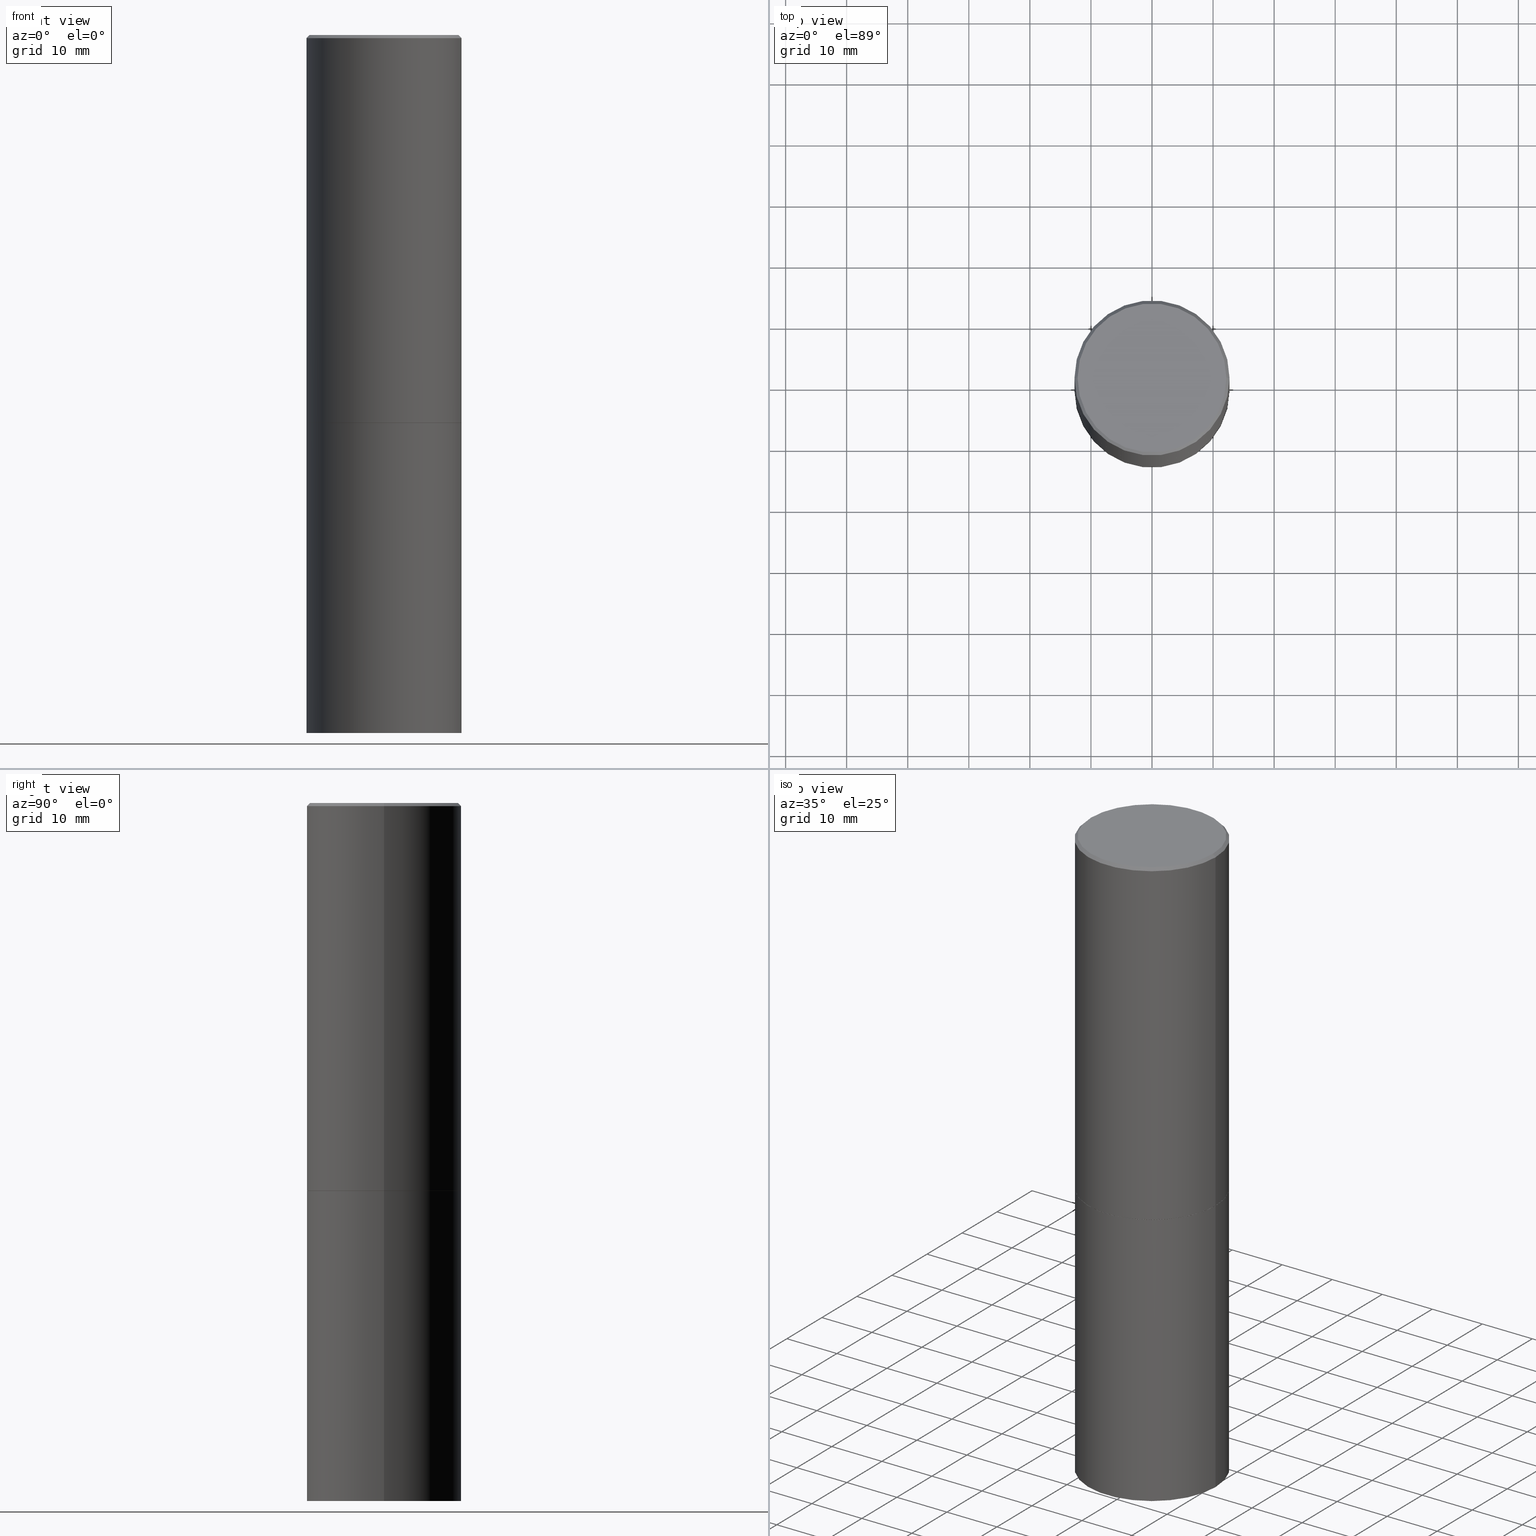
[diagram: canonical four-view strip — front | top / right | iso, engineering-drawing reading convention]
A machine part, canonical four-view strip (front | top / right | iso — engineering-drawing reading convention). The complete STEP part file that produces these views, byte-faithful:
ISO-10303-21;
HEADER;
FILE_DESCRIPTION (( 'STEP AP203' ),
    '1' );
FILE_NAME ('38511.STEP',
    '2024-02-27T23:08:18',
    ( '' ),
    ( '' ),
    'SwSTEP 2.0',
    'SolidWorks 2023',
    '' );
FILE_SCHEMA (( 'CONFIG_CONTROL_DESIGN' ));
ENDSEC;

DATA;
#1 = CONICAL_SURFACE ( 'NONE', #325, 0.4999999999999997224, 0.7853981633974463916 ) ;
#2 = ORIENTED_EDGE ( 'NONE', *, *, #152, .F. ) ;
#3 = DIRECTION ( 'NONE',  ( -0.7071067811865461294, 2.468850131082242072E-15, -0.7071067811865489050 ) ) ;
#4 = DIRECTION ( 'NONE',  ( 2.445468806185136597E-29, -3.491481338843145583E-15, -1.000000000000000000 ) ) ;
#5 = CARTESIAN_POINT ( 'NONE',  ( -0.4989999999999999991, -5.177796641316744197E-15, -2.500000000000000444 ) ) ;
#6 = CLOSED_SHELL ( 'NONE', ( #10, #171, #332, #314 ) ) ;
#7 = UNCERTAINTY_MEASURE_WITH_UNIT (LENGTH_MEASURE( 1.000000000000000082E-05 ), #78, 'distance_accuracy_value', 'NONE');
#8 = CARTESIAN_POINT ( 'NONE',  ( 0.5000000000000000000, -1.920314736363729025E-14, -4.500000000000000000 ) ) ;
#9 = PERSON_AND_ORGANIZATION_ROLE ( 'creator' ) ;
#10 = ADVANCED_FACE ( 'NONE', ( #227 ), #66, .T. ) ;
#11 = ORIENTED_EDGE ( 'NONE', *, *, #362, .T. ) ;
#12 = APPROVAL_DATE_TIME ( #176, #122 ) ;
#13 = CARTESIAN_POINT ( 'NONE',  ( 0.000000000000000000, 0.000000000000000000, 0.000000000000000000 ) ) ;
#14 = CARTESIAN_POINT ( 'NONE',  ( 6.113672015462842613E-29, -8.728703347107864943E-15, -2.500000000000000000 ) ) ;
#15 = FACE_OUTER_BOUND ( 'NONE', #244, .T. ) ;
#16 = PERSON_AND_ORGANIZATION ( #212, #252 ) ;
#17 = ADVANCED_FACE ( 'NONE', ( #263 ), #293, .T. ) ;
#18 = CARTESIAN_POINT ( 'NONE',  ( 3.491481338843243007E-15, 0.4999999999999842903, -4.500000000000001776 ) ) ;
#19 = CARTESIAN_POINT ( 'NONE',  ( 3.491481338843194098E-15, 0.4999999999999912292, -2.500000000000001776 ) ) ;
#20 = VECTOR ( 'NONE', #303, 39.37007874015748143 ) ;
#21 = AXIS2_PLACEMENT_3D ( 'NONE', #170, #4, #97 ) ;
#22 = ORIENTED_EDGE ( 'NONE', *, *, #108, .F. ) ;
#23 = CALENDAR_DATE ( 2024, 27, 2 ) ;
#24 = ORIENTED_EDGE ( 'NONE', *, *, #229, .T. ) ;
#25 = DIRECTION ( 'NONE',  ( -2.445468806185136597E-29, 3.491481338843145583E-15, 1.000000000000000000 ) ) ;
#26 = ADVANCED_FACE ( 'NONE', ( #345 ), #1, .T. ) ;
#27 = AXIS2_PLACEMENT_3D ( 'NONE', #351, #180, #296 ) ;
#28 = DIRECTION ( 'NONE',  ( -2.445468806185136597E-29, 3.491481338843145583E-15, 1.000000000000000000 ) ) ;
#29 = DATE_AND_TIME ( #197, #33 ) ;
#30 = EDGE_CURVE ( 'NONE', #282, #246, #225, .T. ) ;
#31 = DIRECTION ( 'NONE',  ( -2.445468806185136597E-29, 3.491481338843145583E-15, 1.000000000000000000 ) ) ;
#32 = ORIENTED_EDGE ( 'NONE', *, *, #213, .F. ) ;
#33 = LOCAL_TIME ( 18, 8, 18.00000000000000000, #315 ) ;
#34 = ORIENTED_EDGE ( 'NONE', *, *, #59, .F. ) ;
#35 = COORDINATED_UNIVERSAL_TIME_OFFSET ( 5, 0, .BEHIND. ) ;
#36 = DIRECTION ( 'NONE',  ( 1.000000000000000000, -6.982962677686267499E-15, 4.876431871984417079E-29 ) ) ;
#37 = CARTESIAN_POINT ( 'NONE',  ( 0.5000000000000000000, -1.221669320461215371E-14, -2.499000000000000110 ) ) ;
#38 = VECTOR ( 'NONE', #76, 39.37007874015748143 ) ;
#39 = DIRECTION ( 'NONE',  ( -2.445468806185136597E-29, 3.491481338843145583E-15, 1.000000000000000000 ) ) ;
#40 = APPROVAL_DATE_TIME ( #320, #121 ) ;
#41 = DATE_AND_TIME ( #67, #116 ) ;
#42 = CARTESIAN_POINT ( 'NONE',  ( 4.890937612370302936E-31, -6.982962677686332285E-17, -0.02000000000000011838 ) ) ;
#43 = CARTESIAN_POINT ( 'NONE',  ( -0.5000000000000000000, -8.448070674724411945E-16, -2.499000000000000110 ) ) ;
#44 = DIRECTION ( 'NONE',  ( -2.445468806185136597E-29, 3.491481338843145583E-15, 1.000000000000000000 ) ) ;
#45 = AXIS2_PLACEMENT_3D ( 'NONE', #94, #25, #224 ) ;
#46 = ORIENTED_EDGE ( 'NONE', *, *, #256, .F. ) ;
#47 = CIRCLE ( 'NONE', #243, 0.5000000000000000000 ) ;
#48 = APPROVAL ( #60, 'UNSPECIFIED' ) ;
#49 = PERSON_AND_ORGANIZATION ( #212, #252 ) ;
#50 = PERSON_AND_ORGANIZATION_ROLE ( 'design_owner' ) ;
#51 =( NAMED_UNIT ( * ) SI_UNIT ( $, .STERADIAN. ) SOLID_ANGLE_UNIT ( ) );
#52 = CARTESIAN_POINT ( 'NONE',  ( 6.113672015462842613E-29, -8.728703347107864943E-15, -2.500000000000000000 ) ) ;
#53 = CARTESIAN_POINT ( 'NONE',  ( 0.4989999999999999991, -1.221320172327331386E-14, -2.500000000000000444 ) ) ;
#54 = EDGE_LOOP ( 'NONE', ( #22, #89 ) ) ;
#55 = CARTESIAN_POINT ( 'NONE',  ( -0.4799999999999996492, 3.386736898677836830E-15, 1.707404996037808406E-17 ) ) ;
#56 = DIRECTION ( 'NONE',  ( -2.445468806185136597E-29, 3.491481338843145583E-15, 1.000000000000000000 ) ) ;
#57 = DIRECTION ( 'NONE',  ( 1.000000000000000000, -6.982962677686266711E-15, 0.000000000000000000 ) ) ;
#58 = CARTESIAN_POINT ( 'NONE',  ( 4.890937612370302936E-31, -6.982962677686332285E-17, -0.02000000000000011838 ) ) ;
#59 = EDGE_CURVE ( 'NONE', #215, #318, #47, .T. ) ;
#60 = APPROVAL_STATUS ( 'not_yet_approved' ) ;
#61 = DIRECTION ( 'NONE',  ( 1.000000000000000000, -6.982962677686266711E-15, 0.000000000000000000 ) ) ;
#62 = MANIFOLD_SOLID_BREP ( 'Body-Move/Copy2[1]', #6 ) ;
#63 = EDGE_LOOP ( 'NONE', ( #356, #77, #34, #333 ) ) ;
#64 = MANIFOLD_SOLID_BREP ( 'Body-Move/Copy2[2]', #214 ) ;
#65 = CIRCLE ( 'NONE', #310, 0.4799999999999996492 ) ;
#66 = CYLINDRICAL_SURFACE ( 'NONE', #203, 0.5000000000000000000 ) ;
#67 = CALENDAR_DATE ( 2024, 27, 2 ) ;
#68 = LINE ( 'NONE', #91, #172 ) ;
#69 = LENGTH_MEASURE_WITH_UNIT ( LENGTH_MEASURE( 0.02539999999999999897 ), #127 );
#70 = DIRECTION ( 'NONE',  ( 1.000000000000000000, -6.982962677686266711E-15, 0.000000000000000000 ) ) ;
#71 = CC_DESIGN_DATE_AND_TIME_ASSIGNMENT ( #29, #294, ( #259 ) ) ;
#72 = VECTOR ( 'NONE', #238, 39.37007874015748143 ) ;
#73 = PERSON_AND_ORGANIZATION ( #212, #252 ) ;
#74 = ORIENTED_EDGE ( 'NONE', *, *, #162, .T. ) ;
#75 = AXIS2_PLACEMENT_3D ( 'NONE', #211, #149, #36 ) ;
#76 = DIRECTION ( 'NONE',  ( 0.7071067811865461294, -7.319954787623251312E-15, -0.7071067811865489050 ) ) ;
#77 = ORIENTED_EDGE ( 'NONE', *, *, #240, .T. ) ;
#78 =( CONVERSION_BASED_UNIT ( 'INCH', #69 ) LENGTH_UNIT ( ) NAMED_UNIT ( #131 ) );
#79 = DIRECTION ( 'NONE',  ( -1.000000000000000000, 6.982962677686265922E-15, -4.876176775795935793E-29 ) ) ;
#80 = CARTESIAN_POINT ( 'NONE',  ( 4.890937612370302936E-31, -6.982962677686332285E-17, -0.02000000000000011838 ) ) ;
#81 = CONICAL_SURFACE ( 'NONE', #235, 0.4989999999999999991, 0.7853981633972775267 ) ;
#82 = CYLINDRICAL_SURFACE ( 'NONE', #335, 0.5000000000000000000 ) ;
#83 = AXIS2_PLACEMENT_3D ( 'NONE', #111, #183, #105 ) ;
#84 = DIRECTION ( 'NONE',  ( 1.000000000000000000, -6.982962677686266711E-15, 0.000000000000000000 ) ) ;
#85 = ORIENTED_EDGE ( 'NONE', *, *, #292, .F. ) ;
#86 = CARTESIAN_POINT ( 'NONE',  ( 1.100460962783311469E-28, -1.571166602479415690E-14, -4.500000000000000000 ) ) ;
#87 = CARTESIAN_POINT ( 'NONE',  ( 0.5000000000000000000, -3.491481338843133355E-15, 2.438088387897967896E-29 ) ) ;
#88 = AXIS2_PLACEMENT_3D ( 'NONE', #222, #334, #270 ) ;
#89 = ORIENTED_EDGE ( 'NONE', *, *, #118, .F. ) ;
#90 = COORDINATED_UNIVERSAL_TIME_OFFSET ( 5, 0, .BEHIND. ) ;
#91 = CARTESIAN_POINT ( 'NONE',  ( 0.4989999999999999991, -1.221320172327331386E-14, -2.500000000000000444 ) ) ;
#92 = EDGE_CURVE ( 'NONE', #318, #198, #142, .T. ) ;
#93 = FACE_OUTER_BOUND ( 'NONE', #63, .T. ) ;
#94 = CARTESIAN_POINT ( 'NONE',  ( 0.000000000000000000, 0.000000000000000000, 0.000000000000000000 ) ) ;
#95 = EDGE_LOOP ( 'NONE', ( #328, #178, #226, #2 ) ) ;
#96 = DIRECTION ( 'NONE',  ( -1.000000000000000000, 6.982962677686265922E-15, -4.876176775795935793E-29 ) ) ;
#97 = DIRECTION ( 'NONE',  ( -1.000000000000000000, 6.982962677686266711E-15, 0.000000000000000000 ) ) ;
#98 = FACE_OUTER_BOUND ( 'NONE', #145, .T. ) ;
#99 = EDGE_CURVE ( 'NONE', #232, #255, #165, .T. ) ;
#100 = ORIENTED_EDGE ( 'NONE', *, *, #162, .F. ) ;
#101 = APPROVAL_ROLE ( '' ) ;
#102 = PERSON_AND_ORGANIZATION ( #212, #252 ) ;
#103 = EDGE_CURVE ( 'NONE', #301, #255, #200, .T. ) ;
#104 = CC_DESIGN_APPROVAL ( #122, ( #259 ) ) ;
#105 = DIRECTION ( 'NONE',  ( -1.000000000000000000, 6.982962677686265922E-15, -4.876176775795935793E-29 ) ) ;
#106 = AXIS2_PLACEMENT_3D ( 'NONE', #52, #231, #265 ) ;
#107 = APPROVAL_STATUS ( 'not_yet_approved' ) ;
#108 = EDGE_CURVE ( 'NONE', #267, #230, #290, .T. ) ;
#109 = FACE_OUTER_BOUND ( 'NONE', #220, .T. ) ;
#110 = CC_DESIGN_APPROVAL ( #48, ( #153 ) ) ;
#111 = CARTESIAN_POINT ( 'NONE',  ( 3.351822085289405181E-15, 0.4799999999999996492, -1.667374017664507851E-15 ) ) ;
#112 = ORIENTED_EDGE ( 'NONE', *, *, #350, .T. ) ;
#113 = ADVANCED_FACE ( 'NONE', ( #93 ), #133, .T. ) ;
#114 = DIRECTION ( 'NONE',  ( 1.000000000000000000, -6.982962677686267499E-15, 4.876431871984417079E-29 ) ) ;
#115 = ORIENTED_EDGE ( 'NONE', *, *, #99, .T. ) ;
#116 = LOCAL_TIME ( 18, 8, 18.00000000000000000, #129 ) ;
#117 = ORIENTED_EDGE ( 'NONE', *, *, #99, .F. ) ;
#118 = EDGE_CURVE ( 'NONE', #230, #267, #148, .T. ) ;
#119 = CARTESIAN_POINT ( 'NONE',  ( 6.113672015462842613E-29, -8.728703347107866520E-15, -2.500000000000000444 ) ) ;
#120 = LOCAL_TIME ( 18, 8, 18.00000000000000000, #349 ) ;
#121 = APPROVAL ( #107, 'UNSPECIFIED' ) ;
#122 = APPROVAL ( #191, 'UNSPECIFIED' ) ;
#123 = CALENDAR_DATE ( 2024, 27, 2 ) ;
#124 = EDGE_LOOP ( 'NONE', ( #278, #253, #117, #130 ) ) ;
#125 = DIRECTION ( 'NONE',  ( -2.445468806185136877E-29, 3.491481338843145188E-15, 1.000000000000000000 ) ) ;
#126 = EDGE_CURVE ( 'NONE', #246, #282, #65, .T. ) ;
#127 =( LENGTH_UNIT ( ) NAMED_UNIT ( * ) SI_UNIT ( $, .METRE. ) );
#128 = LINE ( 'NONE', #326, #272 ) ;
#129 = COORDINATED_UNIVERSAL_TIME_OFFSET ( 5, 0, .BEHIND. ) ;
#130 = ORIENTED_EDGE ( 'NONE', *, *, #291, .F. ) ;
#131 = DIMENSIONAL_EXPONENTS ( 1.000000000000000000, 0.000000000000000000, 0.000000000000000000, 0.000000000000000000, 0.000000000000000000, 0.000000000000000000, 0.000000000000000000 ) ;
#132 = AXIS2_PLACEMENT_3D ( 'NONE', #80, #56, #70 ) ;
#133 = CONICAL_SURFACE ( 'NONE', #329, 0.4989999999999999991, 0.7853981633972775267 ) ;
#134 = FACE_OUTER_BOUND ( 'NONE', #54, .T. ) ;
#135 = EDGE_LOOP ( 'NONE', ( #188, #250, #24, #46 ) ) ;
#136 = DIRECTION ( 'NONE',  ( -2.445468806185136597E-29, 3.491481338843145583E-15, 1.000000000000000000 ) ) ;
#137 = FACE_OUTER_BOUND ( 'NONE', #344, .T. ) ;
#138 = CARTESIAN_POINT ( 'NONE',  ( 6.111226546656657010E-29, -8.725211865769021935E-15, -2.499000000000000110 ) ) ;
#139 = CARTESIAN_POINT ( 'NONE',  ( -4.175405657340879278E-46, 5.961372681521788801E-32, 1.707404996040164512E-17 ) ) ;
#140 = ORIENTED_EDGE ( 'NONE', *, *, #126, .F. ) ;
#141 = ORIENTED_EDGE ( 'NONE', *, *, #362, .F. ) ;
#142 = LINE ( 'NONE', #365, #261 ) ;
#143 =( NAMED_UNIT ( * ) PLANE_ANGLE_UNIT ( ) SI_UNIT ( $, .RADIAN. ) );
#144 = APPLICATION_CONTEXT ( 'configuration controlled 3d designs of mechanical parts and assemblies' ) ;
#145 = EDGE_LOOP ( 'NONE', ( #186, #217, #112, #286 ) ) ;
#146 = AXIS2_PLACEMENT_3D ( 'NONE', #14, #321, #237 ) ;
#147 = VERTEX_POINT ( 'NONE', #221 ) ;
#148 = CIRCLE ( 'NONE', #219, 0.4989999999999999991 ) ;
#149 = DIRECTION ( 'NONE',  ( -2.445468806185136597E-29, 3.491481338843145583E-15, 1.000000000000000000 ) ) ;
#150 = CIRCLE ( 'NONE', #88, 0.5000000000000000000 ) ;
#151 = ADVANCED_FACE ( 'NONE', ( #241 ), #298, .F. ) ;
#152 = EDGE_CURVE ( 'NONE', #215, #147, #128, .T. ) ;
#153 = PRODUCT_DEFINITION_FORMATION_WITH_SPECIFIED_SOURCE ( 'ANY', '', #358, .NOT_KNOWN. ) ;
#154 = CARTESIAN_POINT ( 'NONE',  ( -0.4999999999999997224, 3.421651712066268085E-15, -0.02000000000000011838 ) ) ;
#155 = APPROVAL_ROLE ( '' ) ;
#156 = FACE_OUTER_BOUND ( 'NONE', #95, .T. ) ;
#157 = DIRECTION ( 'NONE',  ( -2.445468806185136597E-29, 3.491481338843145583E-15, 1.000000000000000000 ) ) ;
#158 = APPROVAL_ROLE ( '' ) ;
#159 = LINE ( 'NONE', #346, #38 ) ;
#160 = CIRCLE ( 'NONE', #195, 0.4999999999999997224 ) ;
#161 = FACE_OUTER_BOUND ( 'NONE', #174, .T. ) ;
#162 = EDGE_CURVE ( 'NONE', #301, #363, #269, .T. ) ;
#163 = ORIENTED_EDGE ( 'NONE', *, *, #126, .T. ) ;
#164 = CIRCLE ( 'NONE', #132, 0.4999999999999997224 ) ;
#165 = CIRCLE ( 'NONE', #106, 0.5000000000000000000 ) ;
#166 = PRODUCT_RELATED_PRODUCT_CATEGORY ( 'detail', '', ( #358 ) ) ;
#167 = EDGE_CURVE ( 'NONE', #282, #147, #159, .T. ) ;
#168 = DIRECTION ( 'NONE',  ( 1.000000000000000000, -6.982962677686266711E-15, 4.876176775795935793E-29 ) ) ;
#169 = LOCAL_TIME ( 18, 8, 18.00000000000000000, #90 ) ;
#170 = CARTESIAN_POINT ( 'NONE',  ( 4.890937612370302936E-31, -6.982962677686332285E-17, -0.02000000000000011838 ) ) ;
#171 = ADVANCED_FACE ( 'NONE', ( #15 ), #276, .T. ) ;
#172 = VECTOR ( 'NONE', #266, 39.37007874015748143 ) ;
#173 = DIRECTION ( 'NONE',  ( -1.000000000000000000, 6.982962677686266711E-15, 0.000000000000000000 ) ) ;
#174 = EDGE_LOOP ( 'NONE', ( #192, #360, #341, #85 ) ) ;
#175 = DIRECTION ( 'NONE',  ( 2.445468806185136597E-29, -3.491481338843145583E-15, -1.000000000000000000 ) ) ;
#176 = DATE_AND_TIME ( #123, #169 ) ;
#177 = DIRECTION ( 'NONE',  ( 2.438088387897960049E-29, -3.491481338843145188E-15, -1.000000000000000000 ) ) ;
#178 = ORIENTED_EDGE ( 'NONE', *, *, #92, .T. ) ;
#179 = CARTESIAN_POINT ( 'NONE',  ( -0.4989999999999999991, -5.183095095664967388E-15, -2.500000000000000444 ) ) ;
#180 = DIRECTION ( 'NONE',  ( -2.445468806185136597E-29, 3.491481338843145583E-15, 1.000000000000000000 ) ) ;
#181 = CIRCLE ( 'NONE', #27, 0.5000000000000000000 ) ;
#182 = AXIS2_PLACEMENT_3D ( 'NONE', #257, #199, #61 ) ;
#183 = DIRECTION ( 'NONE',  ( 2.438088387897960049E-29, -3.491481338843145188E-15, -1.000000000000000000 ) ) ;
#184 = CARTESIAN_POINT ( 'NONE',  ( 0.000000000000000000, 0.000000000000000000, 0.000000000000000000 ) ) ;
#185 = DIRECTION ( 'NONE',  ( 1.000000000000000000, -6.982962677686266711E-15, 4.876176775795935793E-29 ) ) ;
#186 = ORIENTED_EDGE ( 'NONE', *, *, #240, .F. ) ;
#187 = CARTESIAN_POINT ( 'NONE',  ( 6.113672015462842613E-29, -8.728703347107866520E-15, -2.500000000000000444 ) ) ;
#188 = ORIENTED_EDGE ( 'NONE', *, *, #30, .F. ) ;
#189 = LOCAL_TIME ( 18, 8, 18.00000000000000000, #35 ) ;
#190 = CARTESIAN_POINT ( 'NONE',  ( -0.5000000000000000000, -8.667471007150509990E-15, -2.500000000000000000 ) ) ;
#191 = APPROVAL_STATUS ( 'not_yet_approved' ) ;
#192 = ORIENTED_EDGE ( 'NONE', *, *, #92, .F. ) ;
#193 = ORIENTED_EDGE ( 'NONE', *, *, #292, .T. ) ;
#194 = CARTESIAN_POINT ( 'NONE',  ( 6.111226546656657010E-29, -8.725211865769021935E-15, -2.499000000000000110 ) ) ;
#195 = AXIS2_PLACEMENT_3D ( 'NONE', #42, #39, #84 ) ;
#196 = ORIENTED_EDGE ( 'NONE', *, *, #291, .T. ) ;
#197 = CALENDAR_DATE ( 2024, 27, 2 ) ;
#198 = VERTEX_POINT ( 'NONE', #154 ) ;
#199 = DIRECTION ( 'NONE',  ( -2.445468806185136597E-29, 3.491481338843145583E-15, 1.000000000000000000 ) ) ;
#200 = LINE ( 'NONE', #338, #307 ) ;
#201 = DIRECTION ( 'NONE',  ( -2.445468806185136597E-29, 3.491481338843145583E-15, 1.000000000000000000 ) ) ;
#202 = VECTOR ( 'NONE', #3, 39.37007874015748143 ) ;
#203 = AXIS2_PLACEMENT_3D ( 'NONE', #364, #312, #168 ) ;
#204 = APPLICATION_PROTOCOL_DEFINITION ( 'international standard', 'config_control_design', 1994, #284 ) ;
#205 = CC_DESIGN_DATE_AND_TIME_ASSIGNMENT ( #41, #275, ( #336 ) ) ;
#206 = AXIS2_PLACEMENT_3D ( 'NONE', #13, #136, #239 ) ;
#207 = AXIS2_PLACEMENT_3D ( 'NONE', #184, #300, #254 ) ;
#208 = EDGE_CURVE ( 'NONE', #318, #215, #287, .T. ) ;
#209 = PERSON_AND_ORGANIZATION ( #212, #252 ) ;
#210 = CALENDAR_DATE ( 2024, 27, 2 ) ;
#211 = CARTESIAN_POINT ( 'NONE',  ( -4.175405657340879278E-46, 5.961372681521788801E-32, 1.707404996040164512E-17 ) ) ;
#212 = PERSON ( 'UNSPECIFIED', 'UNSPECIFIED', 'UNSPECIFIED', ('UNSPECIFIED'), ('UNSPECIFIED'), ('UNSPECIFIED') ) ;
#213 = EDGE_CURVE ( 'NONE', #363, #301, #181, .T. ) ;
#214 = CLOSED_SHELL ( 'NONE', ( #113, #223, #26, #17, #249, #355, #295, #151 ) ) ;
#215 = VERTEX_POINT ( 'NONE', #37 ) ;
#216 = APPLICATION_PROTOCOL_DEFINITION ( 'international standard', 'config_control_design', 1994, #144 ) ;
#217 = ORIENTED_EDGE ( 'NONE', *, *, #118, .T. ) ;
#218 = AXIS2_PLACEMENT_3D ( 'NONE', #19, #339, #96 ) ;
#219 = AXIS2_PLACEMENT_3D ( 'NONE', #187, #283, #285 ) ;
#220 = EDGE_LOOP ( 'NONE', ( #340, #74, #196, #141 ) ) ;
#221 = CARTESIAN_POINT ( 'NONE',  ( 0.4999999999999997224, -3.500078625662627502E-15, -0.02000000000000011838 ) ) ;
#222 = CARTESIAN_POINT ( 'NONE',  ( 6.113672015462842613E-29, -8.728703347107864943E-15, -2.500000000000000000 ) ) ;
#223 = ADVANCED_FACE ( 'NONE', ( #156 ), #273, .T. ) ;
#224 = DIRECTION ( 'NONE',  ( 1.000000000000000000, -6.982962677686267499E-15, 4.876176775795936353E-29 ) ) ;
#225 = CIRCLE ( 'NONE', #75, 0.4799999999999996492 ) ;
#226 = ORIENTED_EDGE ( 'NONE', *, *, #229, .F. ) ;
#227 = FACE_OUTER_BOUND ( 'NONE', #124, .T. ) ;
#228 = DIRECTION ( 'NONE',  ( 1.000000000000000000, -6.982962677686266711E-15, 0.000000000000000000 ) ) ;
#229 = EDGE_CURVE ( 'NONE', #147, #198, #164, .T. ) ;
#230 = VERTEX_POINT ( 'NONE', #5 ) ;
#231 = DIRECTION ( 'NONE',  ( -2.445468806185136597E-29, 3.491481338843145583E-15, 1.000000000000000000 ) ) ;
#232 = VERTEX_POINT ( 'NONE', #279 ) ;
#233 = SHAPE_DEFINITION_REPRESENTATION ( #247, #313 ) ;
#234 = CC_DESIGN_PERSON_AND_ORGANIZATION_ASSIGNMENT ( #49, #322, ( #259 ) ) ;
#235 = AXIS2_PLACEMENT_3D ( 'NONE', #119, #201, #57 ) ;
#236 = PERSON_AND_ORGANIZATION_ROLE ( 'creator' ) ;
#237 = DIRECTION ( 'NONE',  ( 1.000000000000000000, -6.982962677686265922E-15, 4.876176775795935793E-29 ) ) ;
#238 = DIRECTION ( 'NONE',  ( -0.7071067811864267805, 7.493145998869918709E-15, 0.7071067811866682540 ) ) ;
#239 = DIRECTION ( 'NONE',  ( 1.000000000000000000, -6.982962677686267499E-15, 4.876176775795936353E-29 ) ) ;
#240 = EDGE_CURVE ( 'NONE', #230, #318, #305, .T. ) ;
#241 = FACE_OUTER_BOUND ( 'NONE', #331, .T. ) ;
#242 = PLANE ( 'NONE',  #146 ) ;
#243 = AXIS2_PLACEMENT_3D ( 'NONE', #194, #31, #324 ) ;
#244 = EDGE_LOOP ( 'NONE', ( #32, #100 ) ) ;
#245 = PERSON_AND_ORGANIZATION_ROLE ( 'design_supplier' ) ;
#246 = VERTEX_POINT ( 'NONE', #55 ) ;
#247 = PRODUCT_DEFINITION_SHAPE ( 'NONE', 'NONE',  #336 ) ;
#248 = DATE_AND_TIME ( #23, #189 ) ;
#249 = ADVANCED_FACE ( 'NONE', ( #161 ), #258, .T. ) ;
#250 = ORIENTED_EDGE ( 'NONE', *, *, #167, .T. ) ;
#251 = MECHANICAL_CONTEXT ( 'NONE', #144, 'mechanical' ) ;
#252 = ORGANIZATION ( 'UNSPECIFIED', 'UNSPECIFIED', '' ) ;
#253 = ORIENTED_EDGE ( 'NONE', *, *, #103, .T. ) ;
#254 = DIRECTION ( 'NONE',  ( 1.000000000000000000, 0.000000000000000000, 0.000000000000000000 ) ) ;
#255 = VERTEX_POINT ( 'NONE', #190 ) ;
#256 = EDGE_CURVE ( 'NONE', #246, #198, #262, .T. ) ;
#257 = CARTESIAN_POINT ( 'NONE',  ( 6.113672015462842613E-29, -8.728703347107866520E-15, -2.500000000000000444 ) ) ;
#258 = CYLINDRICAL_SURFACE ( 'NONE', #45, 0.4999999999999998335 ) ;
#259 = SECURITY_CLASSIFICATION ( '', '', #357 ) ;
#260 = ORIENTED_EDGE ( 'NONE', *, *, #30, .T. ) ;
#261 = VECTOR ( 'NONE', #125, 39.37007874015748143 ) ;
#262 = LINE ( 'NONE', #337, #202 ) ;
#263 = FACE_OUTER_BOUND ( 'NONE', #343, .T. ) ;
#264 = CC_DESIGN_PERSON_AND_ORGANIZATION_ASSIGNMENT ( #347, #245, ( #153 ) ) ;
#265 = DIRECTION ( 'NONE',  ( 1.000000000000000000, -6.982962677686269077E-15, 0.000000000000000000 ) ) ;
#266 = DIRECTION ( 'NONE',  ( 0.7071067811864267805, -2.468850131080992517E-15, 0.7071067811866682540 ) ) ;
#267 = VERTEX_POINT ( 'NONE', #53 ) ;
#268 = CC_DESIGN_PERSON_AND_ORGANIZATION_ASSIGNMENT ( #308, #50, ( #358 ) ) ;
#269 = CIRCLE ( 'NONE', #317, 0.5000000000000000000 ) ;
#270 = DIRECTION ( 'NONE',  ( 1.000000000000000000, -6.982962677686269077E-15, 0.000000000000000000 ) ) ;
#271 = DIRECTION ( 'NONE',  ( -2.445468806185136597E-29, 3.491481338843145583E-15, 1.000000000000000000 ) ) ;
#272 = VECTOR ( 'NONE', #302, 39.37007874015748143 ) ;
#273 = CYLINDRICAL_SURFACE ( 'NONE', #206, 0.4999999999999998335 ) ;
#274 = PERSON_AND_ORGANIZATION ( #212, #252 ) ;
#275 = DATE_TIME_ROLE ( 'creation_date' ) ;
#276 = PLANE ( 'NONE',  #323 ) ;
#277 = PLANE ( 'NONE',  #218 ) ;
#278 = ORIENTED_EDGE ( 'NONE', *, *, #213, .T. ) ;
#279 = CARTESIAN_POINT ( 'NONE',  ( 0.5000000000000000000, -1.222018468595099830E-14, -2.500000000000000000 ) ) ;
#280 = APPROVAL_PERSON_ORGANIZATION ( #73, #121, #155 ) ;
#281 = CC_DESIGN_PERSON_AND_ORGANIZATION_ASSIGNMENT ( #274, #9, ( #336 ) ) ;
#282 = VERTEX_POINT ( 'NONE', #353 ) ;
#283 = DIRECTION ( 'NONE',  ( -2.445468806185136597E-29, 3.491481338843145583E-15, 1.000000000000000000 ) ) ;
#284 = APPLICATION_CONTEXT ( 'configuration controlled 3d designs of mechanical parts and assemblies' ) ;
#285 = DIRECTION ( 'NONE',  ( 1.000000000000000000, -6.982962677686266711E-15, 0.000000000000000000 ) ) ;
#286 = ORIENTED_EDGE ( 'NONE', *, *, #208, .F. ) ;
#287 = CIRCLE ( 'NONE', #288, 0.5000000000000000000 ) ;
#288 = AXIS2_PLACEMENT_3D ( 'NONE', #138, #271, #348 ) ;
#289 = CARTESIAN_POINT ( 'NONE',  ( 6.113672015462842613E-29, -8.728703347107866520E-15, -2.500000000000000444 ) ) ;
#290 = CIRCLE ( 'NONE', #182, 0.4989999999999999991 ) ;
#291 = EDGE_CURVE ( 'NONE', #363, #232, #327, .T. ) ;
#292 = EDGE_CURVE ( 'NONE', #198, #147, #160, .T. ) ;
#293 = CONICAL_SURFACE ( 'NONE', #21, 0.4999999999999997224, 0.7853981633974463916 ) ;
#294 = DATE_TIME_ROLE ( 'classification_date' ) ;
#295 = ADVANCED_FACE ( 'NONE', ( #134 ), #242, .F. ) ;
#296 = DIRECTION ( 'NONE',  ( 1.000000000000000000, -6.982962677686266711E-15, 0.000000000000000000 ) ) ;
#297 = CARTESIAN_POINT ( 'NONE',  ( -0.5000000000000000000, -8.667471007150509990E-15, -4.500000000000000000 ) ) ;
#298 = PLANE ( 'NONE',  #83 ) ;
#299 = DIRECTION ( 'NONE',  ( 1.000000000000000000, -6.982962677686266711E-15, 0.000000000000000000 ) ) ;
#300 = DIRECTION ( 'NONE',  ( 0.000000000000000000, 0.000000000000000000, 1.000000000000000000 ) ) ;
#301 = VERTEX_POINT ( 'NONE', #297 ) ;
#302 = DIRECTION ( 'NONE',  ( -2.445468806185136877E-29, 3.491481338843145188E-15, 1.000000000000000000 ) ) ;
#303 = DIRECTION ( 'NONE',  ( -2.445468806185136877E-29, 3.491481338843145188E-15, 1.000000000000000000 ) ) ;
#304 = ORIENTED_EDGE ( 'NONE', *, *, #256, .T. ) ;
#305 = LINE ( 'NONE', #179, #72 ) ;
#306 = CC_DESIGN_SECURITY_CLASSIFICATION ( #259, ( #153 ) ) ;
#307 = VECTOR ( 'NONE', #311, 39.37007874015748143 ) ;
#308 = PERSON_AND_ORGANIZATION ( #212, #252 ) ;
#309 = CC_DESIGN_APPROVAL ( #121, ( #336 ) ) ;
#310 = AXIS2_PLACEMENT_3D ( 'NONE', #139, #359, #114 ) ;
#311 = DIRECTION ( 'NONE',  ( -2.445468806185136877E-29, 3.491481338843145188E-15, 1.000000000000000000 ) ) ;
#312 = DIRECTION ( 'NONE',  ( -2.445468806185136597E-29, 3.491481338843145583E-15, 1.000000000000000000 ) ) ;
#313 = ADVANCED_BREP_SHAPE_REPRESENTATION ( '38511', ( #62, #64, #207 ), #366 ) ;
#314 = ADVANCED_FACE ( 'NONE', ( #109 ), #82, .T. ) ;
#315 = COORDINATED_UNIVERSAL_TIME_OFFSET ( 5, 0, .BEHIND. ) ;
#316 = DESIGN_CONTEXT ( 'detailed design', #284, 'design' ) ;
#317 = AXIS2_PLACEMENT_3D ( 'NONE', #86, #44, #299 ) ;
#318 = VERTEX_POINT ( 'NONE', #43 ) ;
#319 = CC_DESIGN_PERSON_AND_ORGANIZATION_ASSIGNMENT ( #209, #236, ( #153 ) ) ;
#320 = DATE_AND_TIME ( #210, #120 ) ;
#321 = DIRECTION ( 'NONE',  ( -2.438088387897960049E-29, 3.491481338843145188E-15, 1.000000000000000000 ) ) ;
#322 = PERSON_AND_ORGANIZATION_ROLE ( 'classification_officer' ) ;
#323 = AXIS2_PLACEMENT_3D ( 'NONE', #18, #177, #79 ) ;
#324 = DIRECTION ( 'NONE',  ( 1.000000000000000000, -6.982962677686265133E-15, 0.000000000000000000 ) ) ;
#325 = AXIS2_PLACEMENT_3D ( 'NONE', #58, #175, #173 ) ;
#326 = CARTESIAN_POINT ( 'NONE',  ( 0.4999999999999998335, -3.491481338843132566E-15, 2.438088387897967336E-29 ) ) ;
#327 = LINE ( 'NONE', #87, #20 ) ;
#328 = ORIENTED_EDGE ( 'NONE', *, *, #59, .T. ) ;
#329 = AXIS2_PLACEMENT_3D ( 'NONE', #289, #28, #228 ) ;
#330 = ORIENTED_EDGE ( 'NONE', *, *, #167, .F. ) ;
#331 = EDGE_LOOP ( 'NONE', ( #163, #260 ) ) ;
#332 = ADVANCED_FACE ( 'NONE', ( #137 ), #277, .F. ) ;
#333 = ORIENTED_EDGE ( 'NONE', *, *, #350, .F. ) ;
#334 = DIRECTION ( 'NONE',  ( -2.445468806185136597E-29, 3.491481338843145583E-15, 1.000000000000000000 ) ) ;
#335 = AXIS2_PLACEMENT_3D ( 'NONE', #352, #157, #185 ) ;
#336 = PRODUCT_DEFINITION ( 'UNKNOWN', '', #153, #316 ) ;
#337 = CARTESIAN_POINT ( 'NONE',  ( -0.4999999999999997224, 3.421651712066268085E-15, -0.02000000000000011838 ) ) ;
#338 = CARTESIAN_POINT ( 'NONE',  ( -0.5000000000000000000, 3.552713678800500929E-15, -2.459467545127452891E-29 ) ) ;
#339 = DIRECTION ( 'NONE',  ( 2.438088387897960049E-29, -3.491481338843145188E-15, -1.000000000000000000 ) ) ;
#340 = ORIENTED_EDGE ( 'NONE', *, *, #103, .F. ) ;
#341 = ORIENTED_EDGE ( 'NONE', *, *, #152, .T. ) ;
#342 = APPROVAL_PERSON_ORGANIZATION ( #16, #48, #101 ) ;
#343 = EDGE_LOOP ( 'NONE', ( #330, #140, #304, #193 ) ) ;
#344 = EDGE_LOOP ( 'NONE', ( #115, #11 ) ) ;
#345 = FACE_OUTER_BOUND ( 'NONE', #135, .T. ) ;
#346 = CARTESIAN_POINT ( 'NONE',  ( 0.4999999999999997224, -3.500078625662627502E-15, -0.02000000000000011838 ) ) ;
#347 = PERSON_AND_ORGANIZATION ( #212, #252 ) ;
#348 = DIRECTION ( 'NONE',  ( 1.000000000000000000, -6.982962677686265133E-15, 0.000000000000000000 ) ) ;
#349 = COORDINATED_UNIVERSAL_TIME_OFFSET ( 5, 0, .BEHIND. ) ;
#350 = EDGE_CURVE ( 'NONE', #267, #215, #68, .T. ) ;
#351 = CARTESIAN_POINT ( 'NONE',  ( 1.100460962783311469E-28, -1.571166602479415690E-14, -4.500000000000000000 ) ) ;
#352 = CARTESIAN_POINT ( 'NONE',  ( 0.000000000000000000, 0.000000000000000000, 0.000000000000000000 ) ) ;
#353 = CARTESIAN_POINT ( 'NONE',  ( 0.4799999999999996492, -3.396558832296480127E-15, 1.707404996042524007E-17 ) ) ;
#354 = APPROVAL_PERSON_ORGANIZATION ( #102, #122, #158 ) ;
#355 = ADVANCED_FACE ( 'NONE', ( #98 ), #81, .T. ) ;
#356 = ORIENTED_EDGE ( 'NONE', *, *, #108, .T. ) ;
#357 = SECURITY_CLASSIFICATION_LEVEL ( 'unclassified' ) ;
#358 = PRODUCT ( '38511', '38511', '', ( #251 ) ) ;
#359 = DIRECTION ( 'NONE',  ( -2.445468806185136597E-29, 3.491481338843145583E-15, 1.000000000000000000 ) ) ;
#360 = ORIENTED_EDGE ( 'NONE', *, *, #208, .T. ) ;
#361 = APPROVAL_DATE_TIME ( #248, #48 ) ;
#362 = EDGE_CURVE ( 'NONE', #255, #232, #150, .T. ) ;
#363 = VERTEX_POINT ( 'NONE', #8 ) ;
#364 = CARTESIAN_POINT ( 'NONE',  ( 0.000000000000000000, 0.000000000000000000, 0.000000000000000000 ) ) ;
#365 = CARTESIAN_POINT ( 'NONE',  ( -0.4999999999999998335, 3.552713678800499746E-15, -2.459467545127452330E-29 ) ) ;
#366 =( GEOMETRIC_REPRESENTATION_CONTEXT ( 3 ) GLOBAL_UNCERTAINTY_ASSIGNED_CONTEXT ( ( #7 ) ) GLOBAL_UNIT_ASSIGNED_CONTEXT ( ( #78, #143, #51 ) ) REPRESENTATION_CONTEXT ( 'NONE', 'WORKASPACE' ) );
ENDSEC;
END-ISO-10303-21;
